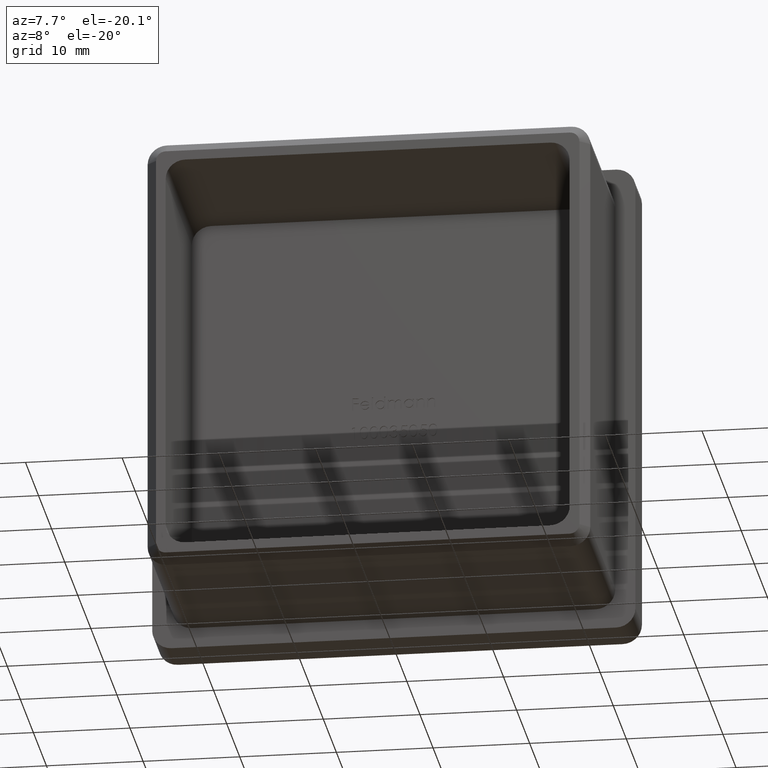
[diagram: clean part render]
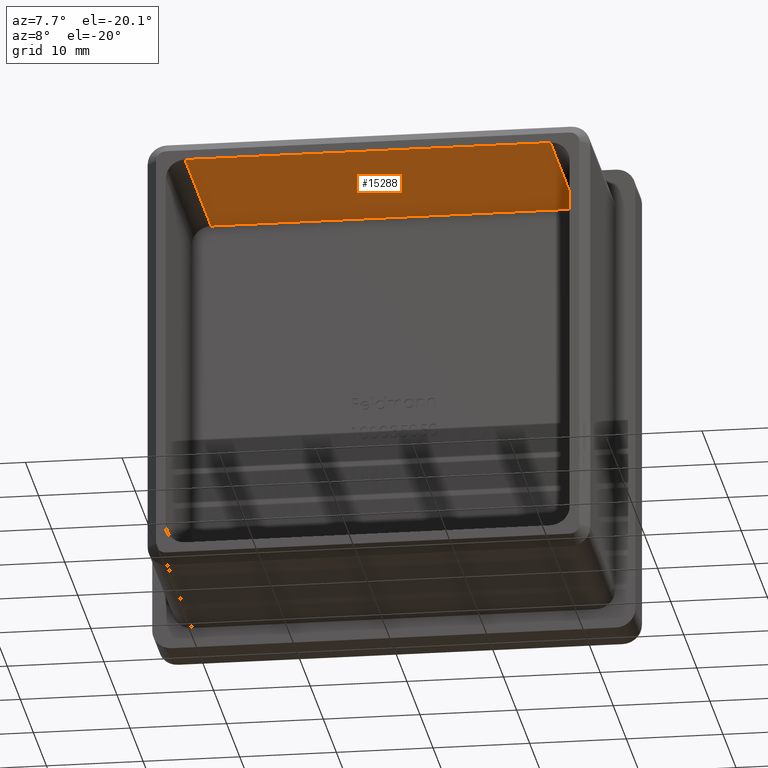
[diagram: same view with one face highlighted and labeled with its STEP entity id]
A machine part, auxiliary view. The second image highlights one B-rep face of the part: STEP entity #15288.
In plain terms, the highlighted planar face has unit normal (0, 0, -1).
Its self-contained STEP definition (entity closure, byte-faithful):
#961 = LINE ( 'NONE', #6375, #11412 ) ;
#1611 = CARTESIAN_POINT ( 'NONE',  ( -18.90000000000000600, 0.0000000000000000000, 20.90000000000000600 ) ) ;
#1638 = VECTOR ( 'NONE', #2697, 1000.000000000000000 ) ;
#1691 = VECTOR ( 'NONE', #7888, 1000.000000000000000 ) ;
#1696 = ORIENTED_EDGE ( 'NONE', *, *, #3706, .T. ) ;
#1906 = EDGE_CURVE ( 'NONE', #6571, #12332, #961, .T. ) ;
#2553 = CARTESIAN_POINT ( 'NONE',  ( -18.90000000000000600, -20.00000000000000000, 20.90000000000000600 ) ) ;
#2697 = DIRECTION ( 'NONE',  ( 0.0000000000000000000, -1.000000000000000000, -0.0000000000000000000 ) ) ;
#3058 = FACE_OUTER_BOUND ( 'NONE', #4495, .T. ) ;
#3209 = CARTESIAN_POINT ( 'NONE',  ( 18.90000000000000900, -20.00000000000000000, 20.90000000000000600 ) ) ;
#3324 = ORIENTED_EDGE ( 'NONE', *, *, #4501, .T. ) ;
#3393 = ORIENTED_EDGE ( 'NONE', *, *, #10273, .T. ) ;
#3706 = EDGE_CURVE ( 'NONE', #6414, #12138, #8945, .T. ) ;
#4495 = EDGE_LOOP ( 'NONE', ( #11573, #3393, #1696, #3324 ) ) ;
#4501 = EDGE_CURVE ( 'NONE', #12138, #12332, #13766, .T. ) ;
#5053 = CARTESIAN_POINT ( 'NONE',  ( 18.90000000000000600, -20.00000000000000000, 20.90000000000000600 ) ) ;
#6156 = CARTESIAN_POINT ( 'NONE',  ( 18.90000000000000900, 0.0000000000000000000, 20.90000000000000600 ) ) ;
#6375 = CARTESIAN_POINT ( 'NONE',  ( -20.90000000000000600, 0.0000000000000000000, 20.90000000000000600 ) ) ;
#6414 = VERTEX_POINT ( 'NONE', #3209 ) ;
#6571 = VERTEX_POINT ( 'NONE', #6156 ) ;
#6805 = DIRECTION ( 'NONE',  ( 0.0000000000000000000, 0.0000000000000000000, -1.000000000000000000 ) ) ;
#7500 = DIRECTION ( 'NONE',  ( -0.0000000000000000000, 1.000000000000000000, 0.0000000000000000000 ) ) ;
#7888 = DIRECTION ( 'NONE',  ( -1.000000000000000000, -0.0000000000000000000, -0.0000000000000000000 ) ) ;
#8350 = LINE ( 'NONE', #5053, #1638 ) ;
#8945 = LINE ( 'NONE', #11434, #1691 ) ;
#9533 = CARTESIAN_POINT ( 'NONE',  ( -18.90000000000000600, 0.0000000000000000000, 20.90000000000000600 ) ) ;
#10010 = AXIS2_PLACEMENT_3D ( 'NONE', #15017, #6805, #15066 ) ;
#10273 = EDGE_CURVE ( 'NONE', #6571, #6414, #8350, .T. ) ;
#10606 = VECTOR ( 'NONE', #7500, 1000.000000000000000 ) ;
#10936 = DIRECTION ( 'NONE',  ( -1.000000000000000000, -0.0000000000000000000, -0.0000000000000000000 ) ) ;
#11412 = VECTOR ( 'NONE', #10936, 1000.000000000000000 ) ;
#11434 = CARTESIAN_POINT ( 'NONE',  ( -20.90000000000000600, -20.00000000000000000, 20.90000000000000600 ) ) ;
#11573 = ORIENTED_EDGE ( 'NONE', *, *, #1906, .F. ) ;
#12138 = VERTEX_POINT ( 'NONE', #2553 ) ;
#12332 = VERTEX_POINT ( 'NONE', #9533 ) ;
#12569 = PLANE ( 'NONE',  #10010 ) ;
#13766 = LINE ( 'NONE', #1611, #10606 ) ;
#15017 = CARTESIAN_POINT ( 'NONE',  ( -20.90000000000000600, -20.00000000000000000, 20.90000000000000600 ) ) ;
#15066 = DIRECTION ( 'NONE',  ( -1.000000000000000000, 0.0000000000000000000, -0.0000000000000000000 ) ) ;
#15288 = ADVANCED_FACE ( 'NONE', ( #3058 ), #12569, .T. ) ;